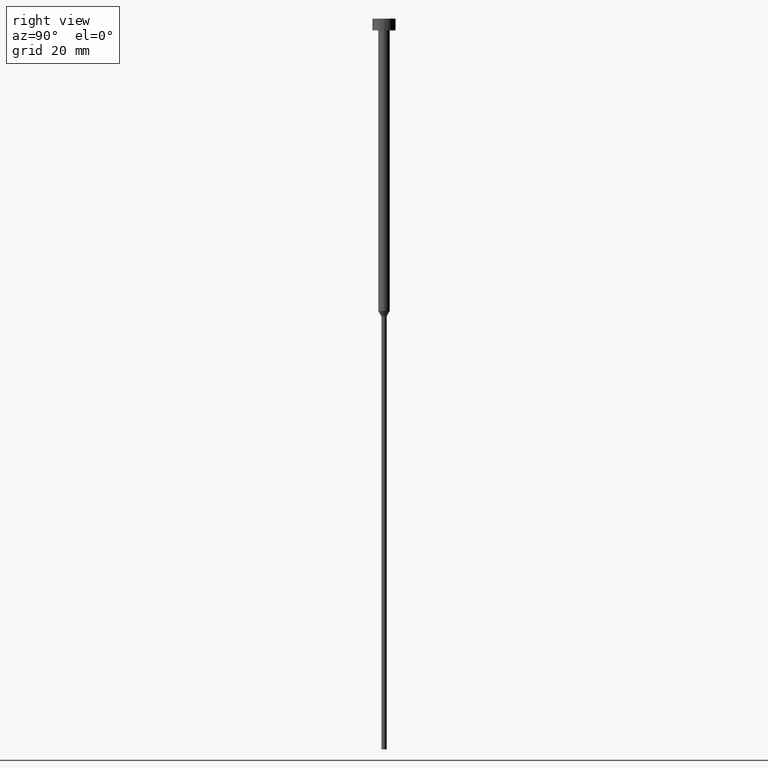
[diagram: clean part render]
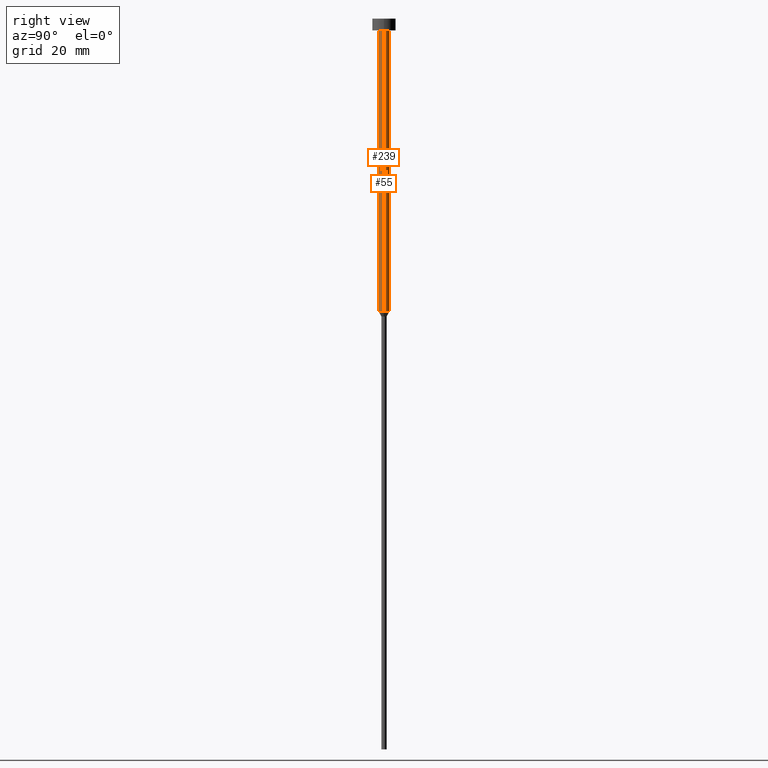
[diagram: same view with one multi-face feature highlighted, each face labeled with its STEP entity id]
A machine part, right view. The highlighted faces form ONE feature: a constant-radius fillet chain: 2 tangent blend faces with common blend radius 1 mm. The faces share edges in the B-rep.
Their STEP definitions:
[1] entity #239 (Cylinder):
#27 = LINE ( 'NONE', #83, #69 ) ;
#29 = AXIS2_PLACEMENT_3D ( 'NONE', #220, #332, #334 ) ;
#34 = DIRECTION ( 'NONE',  ( -0.000000000000000000, -0.000000000000000000, 1.000000000000000000 ) ) ;
#36 = CARTESIAN_POINT ( 'NONE',  ( 1.000000000000003553, 0.000000000000000000, -2.000000000000000444 ) ) ;
#43 = CARTESIAN_POINT ( 'NONE',  ( 0.000000000000000000, 0.000000000000000000, -2.000000000000000444 ) ) ;
#49 = CARTESIAN_POINT ( 'NONE',  ( -1.000000000000003109, 1.224646799147356905E-16, -50.00000000000000000 ) ) ;
#52 = VERTEX_POINT ( 'NONE', #49 ) ;
#60 = CARTESIAN_POINT ( 'NONE',  ( 0.000000000000000000, 0.000000000000000000, -50.00000000000000000 ) ) ;
#69 = VECTOR ( 'NONE', #167, 1000.000000000000000 ) ;
#75 = EDGE_LOOP ( 'NONE', ( #121, #206, #196, #152 ) ) ;
#83 = CARTESIAN_POINT ( 'NONE',  ( -1.000000000000003331, 1.224646799147357151E-16, 0.000000000000000000 ) ) ;
#84 = FACE_OUTER_BOUND ( 'NONE', #75, .T. ) ;
#88 = DIRECTION ( 'NONE',  ( -0.000000000000000000, -0.000000000000000000, 1.000000000000000000 ) ) ;
#103 = VERTEX_POINT ( 'NONE', #36 ) ;
#121 = ORIENTED_EDGE ( 'NONE', *, *, #163, .F. ) ;
#124 = AXIS2_PLACEMENT_3D ( 'NONE', #43, #125, #230 ) ;
#125 = DIRECTION ( 'NONE',  ( -0.000000000000000000, -0.000000000000000000, 1.000000000000000000 ) ) ;
#142 = DIRECTION ( 'NONE',  ( 1.000000000000000000, 0.000000000000000000, 0.000000000000000000 ) ) ;
#151 = LINE ( 'NONE', #199, #193 ) ;
#152 = ORIENTED_EDGE ( 'NONE', *, *, #307, .F. ) ;
#159 = EDGE_CURVE ( 'NONE', #52, #164, #335, .T. ) ;
#163 = EDGE_CURVE ( 'NONE', #52, #348, #27, .T. ) ;
#164 = VERTEX_POINT ( 'NONE', #355 ) ;
#167 = DIRECTION ( 'NONE',  ( -0.000000000000000000, -0.000000000000000000, 1.000000000000000000 ) ) ;
#189 = CIRCLE ( 'NONE', #124, 1.000000000000003553 ) ;
#193 = VECTOR ( 'NONE', #88, 1000.000000000000000 ) ;
#196 = ORIENTED_EDGE ( 'NONE', *, *, #326, .T. ) ;
#199 = CARTESIAN_POINT ( 'NONE',  ( 1.000000000000003331, 0.000000000000000000, 0.000000000000000000 ) ) ;
#206 = ORIENTED_EDGE ( 'NONE', *, *, #159, .T. ) ;
#220 = CARTESIAN_POINT ( 'NONE',  ( 0.000000000000000000, 0.000000000000000000, 0.000000000000000000 ) ) ;
#230 = DIRECTION ( 'NONE',  ( 1.000000000000000000, 0.000000000000000000, 0.000000000000000000 ) ) ;
#239 = ADVANCED_FACE ( 'NONE', ( #84 ), #301, .T. ) ;
#254 = CARTESIAN_POINT ( 'NONE',  ( -1.000000000000003553, 1.224646799147357398E-16, -2.000000000000000444 ) ) ;
#260 = AXIS2_PLACEMENT_3D ( 'NONE', #60, #34, #142 ) ;
#301 = CYLINDRICAL_SURFACE ( 'NONE', #29, 1.000000000000003331 ) ;
#307 = EDGE_CURVE ( 'NONE', #348, #103, #189, .T. ) ;
#326 = EDGE_CURVE ( 'NONE', #164, #103, #151, .T. ) ;
#332 = DIRECTION ( 'NONE',  ( -0.000000000000000000, -0.000000000000000000, 1.000000000000000000 ) ) ;
#334 = DIRECTION ( 'NONE',  ( 1.000000000000000000, 0.000000000000000000, 0.000000000000000000 ) ) ;
#335 = CIRCLE ( 'NONE', #260, 1.000000000000003109 ) ;
#348 = VERTEX_POINT ( 'NONE', #254 ) ;
#355 = CARTESIAN_POINT ( 'NONE',  ( 1.000000000000003109, 0.000000000000000000, -50.00000000000000000 ) ) ;
[2] entity #55 (Cylinder):
#17 = DIRECTION ( 'NONE',  ( -0.000000000000000000, -0.000000000000000000, 1.000000000000000000 ) ) ;
#24 = AXIS2_PLACEMENT_3D ( 'NONE', #76, #71, #177 ) ;
#25 = ORIENTED_EDGE ( 'NONE', *, *, #326, .F. ) ;
#27 = LINE ( 'NONE', #83, #69 ) ;
#36 = CARTESIAN_POINT ( 'NONE',  ( 1.000000000000003553, 0.000000000000000000, -2.000000000000000444 ) ) ;
#49 = CARTESIAN_POINT ( 'NONE',  ( -1.000000000000003109, 1.224646799147356905E-16, -50.00000000000000000 ) ) ;
#52 = VERTEX_POINT ( 'NONE', #49 ) ;
#55 = ADVANCED_FACE ( 'NONE', ( #346 ), #182, .T. ) ;
#61 = CIRCLE ( 'NONE', #221, 1.000000000000003553 ) ;
#62 = EDGE_LOOP ( 'NONE', ( #280, #89, #320, #25 ) ) ;
#69 = VECTOR ( 'NONE', #167, 1000.000000000000000 ) ;
#71 = DIRECTION ( 'NONE',  ( -0.000000000000000000, -0.000000000000000000, 1.000000000000000000 ) ) ;
#76 = CARTESIAN_POINT ( 'NONE',  ( 0.000000000000000000, 0.000000000000000000, 0.000000000000000000 ) ) ;
#82 = EDGE_CURVE ( 'NONE', #103, #348, #61, .T. ) ;
#83 = CARTESIAN_POINT ( 'NONE',  ( -1.000000000000003331, 1.224646799147357151E-16, 0.000000000000000000 ) ) ;
#85 = DIRECTION ( 'NONE',  ( 1.000000000000000000, 0.000000000000000000, 0.000000000000000000 ) ) ;
#88 = DIRECTION ( 'NONE',  ( -0.000000000000000000, -0.000000000000000000, 1.000000000000000000 ) ) ;
#89 = ORIENTED_EDGE ( 'NONE', *, *, #163, .T. ) ;
#103 = VERTEX_POINT ( 'NONE', #36 ) ;
#115 = DIRECTION ( 'NONE',  ( -0.000000000000000000, -0.000000000000000000, 1.000000000000000000 ) ) ;
#151 = LINE ( 'NONE', #199, #193 ) ;
#158 = DIRECTION ( 'NONE',  ( 1.000000000000000000, 0.000000000000000000, 0.000000000000000000 ) ) ;
#163 = EDGE_CURVE ( 'NONE', #52, #348, #27, .T. ) ;
#164 = VERTEX_POINT ( 'NONE', #355 ) ;
#167 = DIRECTION ( 'NONE',  ( -0.000000000000000000, -0.000000000000000000, 1.000000000000000000 ) ) ;
#177 = DIRECTION ( 'NONE',  ( 1.000000000000000000, 0.000000000000000000, 0.000000000000000000 ) ) ;
#182 = CYLINDRICAL_SURFACE ( 'NONE', #24, 1.000000000000003331 ) ;
#193 = VECTOR ( 'NONE', #88, 1000.000000000000000 ) ;
#199 = CARTESIAN_POINT ( 'NONE',  ( 1.000000000000003331, 0.000000000000000000, 0.000000000000000000 ) ) ;
#209 = CIRCLE ( 'NONE', #229, 1.000000000000003109 ) ;
#211 = CARTESIAN_POINT ( 'NONE',  ( 0.000000000000000000, 0.000000000000000000, -50.00000000000000000 ) ) ;
#221 = AXIS2_PLACEMENT_3D ( 'NONE', #288, #17, #158 ) ;
#229 = AXIS2_PLACEMENT_3D ( 'NONE', #211, #115, #85 ) ;
#249 = EDGE_CURVE ( 'NONE', #164, #52, #209, .T. ) ;
#254 = CARTESIAN_POINT ( 'NONE',  ( -1.000000000000003553, 1.224646799147357398E-16, -2.000000000000000444 ) ) ;
#280 = ORIENTED_EDGE ( 'NONE', *, *, #249, .T. ) ;
#288 = CARTESIAN_POINT ( 'NONE',  ( 0.000000000000000000, 0.000000000000000000, -2.000000000000000444 ) ) ;
#320 = ORIENTED_EDGE ( 'NONE', *, *, #82, .F. ) ;
#326 = EDGE_CURVE ( 'NONE', #164, #103, #151, .T. ) ;
#346 = FACE_OUTER_BOUND ( 'NONE', #62, .T. ) ;
#348 = VERTEX_POINT ( 'NONE', #254 ) ;
#355 = CARTESIAN_POINT ( 'NONE',  ( 1.000000000000003109, 0.000000000000000000, -50.00000000000000000 ) ) ;